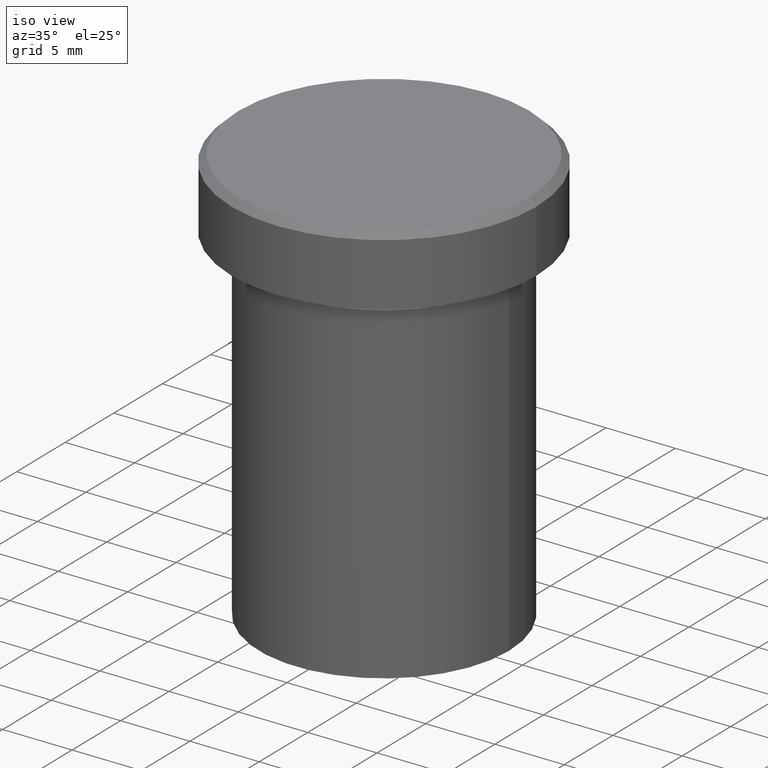
[diagram: clean part render]
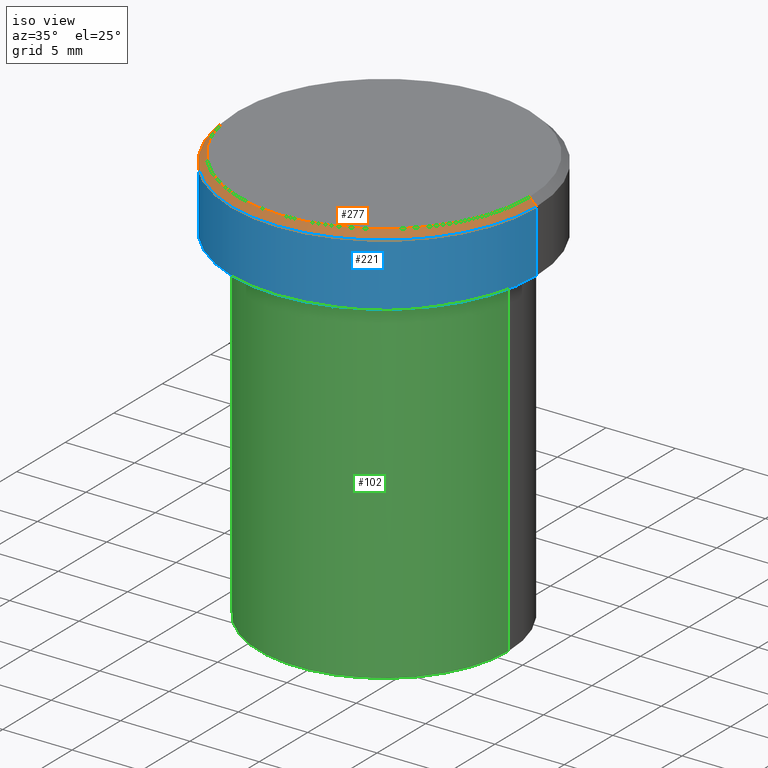
[diagram: same view with three faces highlighted in distinct colors, each labeled with its STEP entity id]
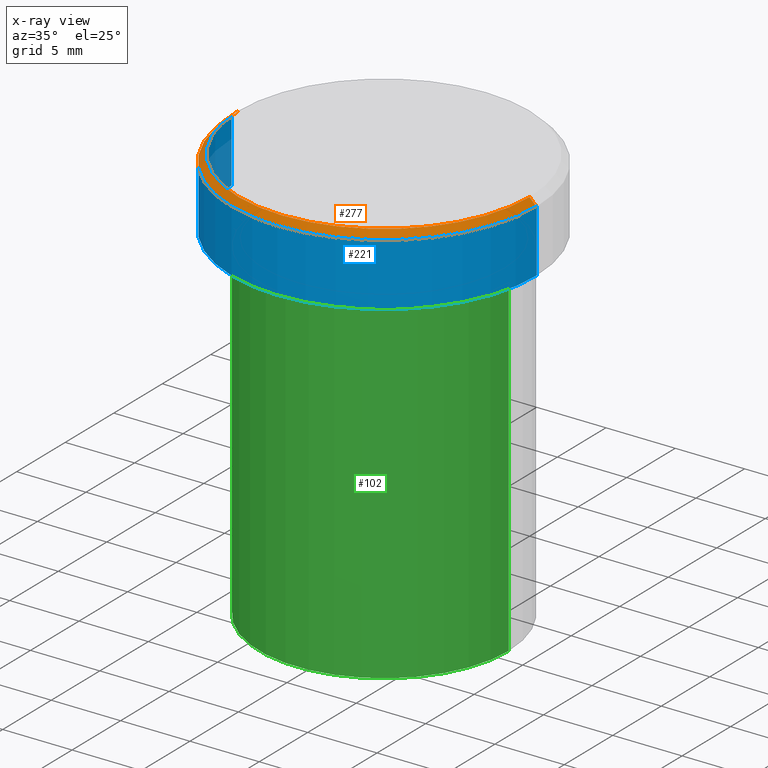
[diagram: x-ray of the same camera — body ghosted, the three highlighted faces saturated]
A machine part, iso view with three faces highlighted in distinct colors.
The next image is the same camera in x-ray (body ghosted, the three faces saturated) — at least one of them is partly hidden behind the body in this view.
Their STEP definitions:

[orange] entity #277 — the highlighted conical surface has half-angle 45 deg.
#6 = CARTESIAN_POINT ( 'NONE',  ( 11.00000000000000000, 0.000000000000000000, -0.5000000000000004441 ) ) ;
#12 = VERTEX_POINT ( 'NONE', #49 ) ;
#18 = AXIS2_PLACEMENT_3D ( 'NONE', #174, #68, #377 ) ;
#21 = CARTESIAN_POINT ( 'NONE',  ( -10.49999999999999822, 0.000000000000000000, 0.000000000000000000 ) ) ;
#22 = ORIENTED_EDGE ( 'NONE', *, *, #262, .F. ) ;
#41 = DIRECTION ( 'NONE',  ( 1.000000000000000000, 0.000000000000000000, 0.000000000000000000 ) ) ;
#49 = CARTESIAN_POINT ( 'NONE',  ( -11.00000000000000000, 1.347111479062088405E-15, -0.5000000000000004441 ) ) ;
#51 = DIRECTION ( 'NONE',  ( -0.7071067811865474617, 0.000000000000000000, -0.7071067811865474617 ) ) ;
#68 = DIRECTION ( 'NONE',  ( 0.000000000000000000, 0.000000000000000000, -1.000000000000000000 ) ) ;
#69 = CARTESIAN_POINT ( 'NONE',  ( 0.000000000000000000, 0.000000000000000000, 0.000000000000000000 ) ) ;
#72 = DIRECTION ( 'NONE',  ( -1.000000000000000000, 0.000000000000000000, 0.000000000000000000 ) ) ;
#82 = DIRECTION ( 'NONE',  ( 0.7071067811865474617, 8.659560562354932858E-17, -0.7071067811865474617 ) ) ;
#85 = CIRCLE ( 'NONE', #230, 10.49999999999999822 ) ;
#86 = VERTEX_POINT ( 'NONE', #346 ) ;
#91 = ORIENTED_EDGE ( 'NONE', *, *, #307, .T. ) ;
#112 = AXIS2_PLACEMENT_3D ( 'NONE', #227, #335, #72 ) ;
#123 = VECTOR ( 'NONE', #82, 1000.000000000000114 ) ;
#143 = FACE_OUTER_BOUND ( 'NONE', #401, .T. ) ;
#146 = ORIENTED_EDGE ( 'NONE', *, *, #308, .F. ) ;
#174 = CARTESIAN_POINT ( 'NONE',  ( 0.000000000000000000, 0.000000000000000000, -0.5000000000000004441 ) ) ;
#184 = CIRCLE ( 'NONE', #18, 11.00000000000000000 ) ;
#193 = VERTEX_POINT ( 'NONE', #6 ) ;
#198 = CARTESIAN_POINT ( 'NONE',  ( 10.49999999999999822, 1.285879139104720633E-15, 0.000000000000000000 ) ) ;
#216 = ORIENTED_EDGE ( 'NONE', *, *, #225, .F. ) ;
#224 = CARTESIAN_POINT ( 'NONE',  ( 10.49999999999999822, 1.316495309083404420E-15, 0.000000000000000000 ) ) ;
#225 = EDGE_CURVE ( 'NONE', #193, #12, #184, .T. ) ;
#227 = CARTESIAN_POINT ( 'NONE',  ( 0.000000000000000000, 0.000000000000000000, 0.000000000000000000 ) ) ;
#230 = AXIS2_PLACEMENT_3D ( 'NONE', #69, #337, #41 ) ;
#262 = EDGE_CURVE ( 'NONE', #86, #266, #85, .T. ) ;
#266 = VERTEX_POINT ( 'NONE', #224 ) ;
#277 = ADVANCED_FACE ( 'NONE', ( #143 ), #341, .T. ) ;
#307 = EDGE_CURVE ( 'NONE', #86, #12, #385, .T. ) ;
#308 = EDGE_CURVE ( 'NONE', #266, #193, #353, .T. ) ;
#335 = DIRECTION ( 'NONE',  ( 0.000000000000000000, 0.000000000000000000, -1.000000000000000000 ) ) ;
#337 = DIRECTION ( 'NONE',  ( -0.000000000000000000, -0.000000000000000000, 1.000000000000000000 ) ) ;
#341 = CONICAL_SURFACE ( 'NONE', #112, 10.49999999999999822, 0.7853981633974482790 ) ;
#346 = CARTESIAN_POINT ( 'NONE',  ( -10.49999999999999822, 0.000000000000000000, 0.000000000000000000 ) ) ;
#353 = LINE ( 'NONE', #198, #123 ) ;
#371 = VECTOR ( 'NONE', #51, 1000.000000000000114 ) ;
#377 = DIRECTION ( 'NONE',  ( 1.000000000000000000, 0.000000000000000000, 0.000000000000000000 ) ) ;
#385 = LINE ( 'NONE', #21, #371 ) ;
#401 = EDGE_LOOP ( 'NONE', ( #146, #22, #91, #216 ) ) ;

[blue] entity #221 — the highlighted cylindrical surface (partial cylindrical patch) has radius 11 mm, axis along (-0, -0, 1).
#6 = CARTESIAN_POINT ( 'NONE',  ( 11.00000000000000000, 0.000000000000000000, -0.5000000000000004441 ) ) ;
#9 = FACE_OUTER_BOUND ( 'NONE', #109, .T. ) ;
#10 = VECTOR ( 'NONE', #19, 1000.000000000000000 ) ;
#12 = VERTEX_POINT ( 'NONE', #49 ) ;
#16 = CARTESIAN_POINT ( 'NONE',  ( 0.000000000000000000, 0.000000000000000000, 0.000000000000000000 ) ) ;
#18 = AXIS2_PLACEMENT_3D ( 'NONE', #174, #68, #377 ) ;
#19 = DIRECTION ( 'NONE',  ( -0.000000000000000000, -0.000000000000000000, 1.000000000000000000 ) ) ;
#24 = CARTESIAN_POINT ( 'NONE',  ( 11.00000000000000000, 0.000000000000000000, 0.000000000000000000 ) ) ;
#34 = EDGE_CURVE ( 'NONE', #188, #193, #171, .T. ) ;
#43 = CYLINDRICAL_SURFACE ( 'NONE', #134, 11.00000000000000000 ) ;
#48 = CARTESIAN_POINT ( 'NONE',  ( -11.00000000000000000, 1.347111479062088405E-15, 0.000000000000000000 ) ) ;
#49 = CARTESIAN_POINT ( 'NONE',  ( -11.00000000000000000, 1.347111479062088405E-15, -0.5000000000000004441 ) ) ;
#54 = CARTESIAN_POINT ( 'NONE',  ( -11.00000000000000000, 1.347111479062088405E-15, -5.000000000000000000 ) ) ;
#68 = DIRECTION ( 'NONE',  ( 0.000000000000000000, 0.000000000000000000, -1.000000000000000000 ) ) ;
#75 = CARTESIAN_POINT ( 'NONE',  ( 11.00000000000000000, 0.000000000000000000, -5.000000000000000000 ) ) ;
#94 = CIRCLE ( 'NONE', #305, 11.00000000000000000 ) ;
#109 = EDGE_LOOP ( 'NONE', ( #164, #392, #255, #293 ) ) ;
#134 = AXIS2_PLACEMENT_3D ( 'NONE', #16, #381, #145 ) ;
#139 = DIRECTION ( 'NONE',  ( -0.000000000000000000, -0.000000000000000000, 1.000000000000000000 ) ) ;
#145 = DIRECTION ( 'NONE',  ( 1.000000000000000000, 0.000000000000000000, 0.000000000000000000 ) ) ;
#152 = VECTOR ( 'NONE', #139, 1000.000000000000000 ) ;
#164 = ORIENTED_EDGE ( 'NONE', *, *, #354, .F. ) ;
#165 = LINE ( 'NONE', #48, #10 ) ;
#168 = DIRECTION ( 'NONE',  ( -0.000000000000000000, -0.000000000000000000, 1.000000000000000000 ) ) ;
#171 = LINE ( 'NONE', #24, #152 ) ;
#174 = CARTESIAN_POINT ( 'NONE',  ( 0.000000000000000000, 0.000000000000000000, -0.5000000000000004441 ) ) ;
#184 = CIRCLE ( 'NONE', #18, 11.00000000000000000 ) ;
#188 = VERTEX_POINT ( 'NONE', #75 ) ;
#193 = VERTEX_POINT ( 'NONE', #6 ) ;
#201 = EDGE_CURVE ( 'NONE', #298, #188, #94, .T. ) ;
#221 = ADVANCED_FACE ( 'NONE', ( #9 ), #43, .T. ) ;
#225 = EDGE_CURVE ( 'NONE', #193, #12, #184, .T. ) ;
#255 = ORIENTED_EDGE ( 'NONE', *, *, #34, .T. ) ;
#280 = CARTESIAN_POINT ( 'NONE',  ( 0.000000000000000000, 0.000000000000000000, -5.000000000000000000 ) ) ;
#287 = DIRECTION ( 'NONE',  ( 1.000000000000000000, 0.000000000000000000, 0.000000000000000000 ) ) ;
#293 = ORIENTED_EDGE ( 'NONE', *, *, #225, .T. ) ;
#298 = VERTEX_POINT ( 'NONE', #54 ) ;
#305 = AXIS2_PLACEMENT_3D ( 'NONE', #280, #168, #287 ) ;
#354 = EDGE_CURVE ( 'NONE', #298, #12, #165, .T. ) ;
#377 = DIRECTION ( 'NONE',  ( 1.000000000000000000, 0.000000000000000000, 0.000000000000000000 ) ) ;
#381 = DIRECTION ( 'NONE',  ( -0.000000000000000000, -0.000000000000000000, 1.000000000000000000 ) ) ;
#392 = ORIENTED_EDGE ( 'NONE', *, *, #201, .T. ) ;

[green] entity #102 — the highlighted cylindrical surface (partial cylindrical patch) has radius 9 mm, axis along (-0, -0, 1).
#11 = CYLINDRICAL_SURFACE ( 'NONE', #39, 9.000000000000000000 ) ;
#17 = EDGE_CURVE ( 'NONE', #77, #259, #326, .T. ) ;
#39 = AXIS2_PLACEMENT_3D ( 'NONE', #284, #276, #210 ) ;
#46 = DIRECTION ( 'NONE',  ( -0.000000000000000000, -0.000000000000000000, 1.000000000000000000 ) ) ;
#66 = CARTESIAN_POINT ( 'NONE',  ( 9.000000000000000000, 0.000000000000000000, -6.000000000000000000 ) ) ;
#70 = CARTESIAN_POINT ( 'NONE',  ( 0.000000000000000000, 0.000000000000000000, -6.000000000000000000 ) ) ;
#77 = VERTEX_POINT ( 'NONE', #106 ) ;
#100 = LINE ( 'NONE', #155, #167 ) ;
#102 = ADVANCED_FACE ( 'NONE', ( #283 ), #11, .T. ) ;
#106 = CARTESIAN_POINT ( 'NONE',  ( -9.000000000000000000, 1.102182119232617714E-15, -30.00000000000000000 ) ) ;
#108 = ORIENTED_EDGE ( 'NONE', *, *, #169, .F. ) ;
#124 = AXIS2_PLACEMENT_3D ( 'NONE', #70, #240, #376 ) ;
#127 = CIRCLE ( 'NONE', #158, 9.000000000000000000 ) ;
#132 = DIRECTION ( 'NONE',  ( 1.000000000000000000, 0.000000000000000000, 0.000000000000000000 ) ) ;
#136 = ORIENTED_EDGE ( 'NONE', *, *, #17, .F. ) ;
#155 = CARTESIAN_POINT ( 'NONE',  ( 9.000000000000000000, 0.000000000000000000, 0.000000000000000000 ) ) ;
#158 = AXIS2_PLACEMENT_3D ( 'NONE', #317, #46, #132 ) ;
#166 = ORIENTED_EDGE ( 'NONE', *, *, #391, .T. ) ;
#167 = VECTOR ( 'NONE', #268, 1000.000000000000000 ) ;
#169 = EDGE_CURVE ( 'NONE', #259, #254, #299, .T. ) ;
#175 = ORIENTED_EDGE ( 'NONE', *, *, #344, .T. ) ;
#210 = DIRECTION ( 'NONE',  ( 1.000000000000000000, 0.000000000000000000, 0.000000000000000000 ) ) ;
#240 = DIRECTION ( 'NONE',  ( -0.000000000000000000, -0.000000000000000000, 1.000000000000000000 ) ) ;
#254 = VERTEX_POINT ( 'NONE', #66 ) ;
#259 = VERTEX_POINT ( 'NONE', #272 ) ;
#263 = EDGE_LOOP ( 'NONE', ( #136, #175, #166, #108 ) ) ;
#268 = DIRECTION ( 'NONE',  ( -0.000000000000000000, -0.000000000000000000, 1.000000000000000000 ) ) ;
#272 = CARTESIAN_POINT ( 'NONE',  ( -9.000000000000000000, 1.102182119232617714E-15, -6.000000000000000000 ) ) ;
#276 = DIRECTION ( 'NONE',  ( -0.000000000000000000, -0.000000000000000000, 1.000000000000000000 ) ) ;
#283 = FACE_OUTER_BOUND ( 'NONE', #263, .T. ) ;
#284 = CARTESIAN_POINT ( 'NONE',  ( 0.000000000000000000, 0.000000000000000000, 0.000000000000000000 ) ) ;
#290 = DIRECTION ( 'NONE',  ( -0.000000000000000000, -0.000000000000000000, 1.000000000000000000 ) ) ;
#299 = CIRCLE ( 'NONE', #124, 9.000000000000000000 ) ;
#317 = CARTESIAN_POINT ( 'NONE',  ( 0.000000000000000000, 0.000000000000000000, -30.00000000000000000 ) ) ;
#326 = LINE ( 'NONE', #328, #330 ) ;
#328 = CARTESIAN_POINT ( 'NONE',  ( -9.000000000000000000, 1.102182119232617714E-15, 0.000000000000000000 ) ) ;
#330 = VECTOR ( 'NONE', #290, 1000.000000000000000 ) ;
#344 = EDGE_CURVE ( 'NONE', #77, #360, #127, .T. ) ;
#360 = VERTEX_POINT ( 'NONE', #366 ) ;
#366 = CARTESIAN_POINT ( 'NONE',  ( 9.000000000000000000, 0.000000000000000000, -30.00000000000000000 ) ) ;
#376 = DIRECTION ( 'NONE',  ( 1.000000000000000000, 0.000000000000000000, 0.000000000000000000 ) ) ;
#391 = EDGE_CURVE ( 'NONE', #360, #254, #100, .T. ) ;